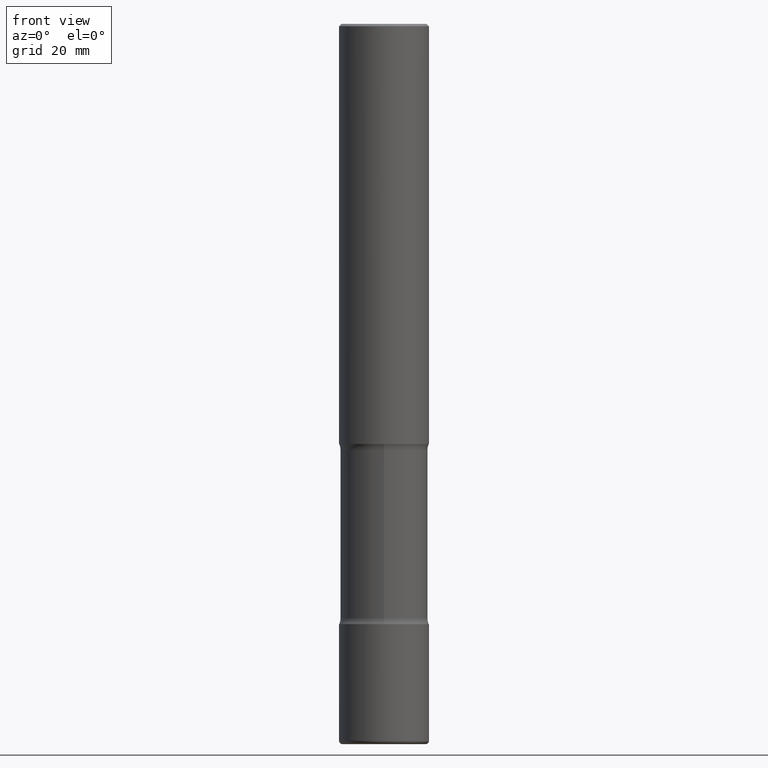
[diagram: clean part render]
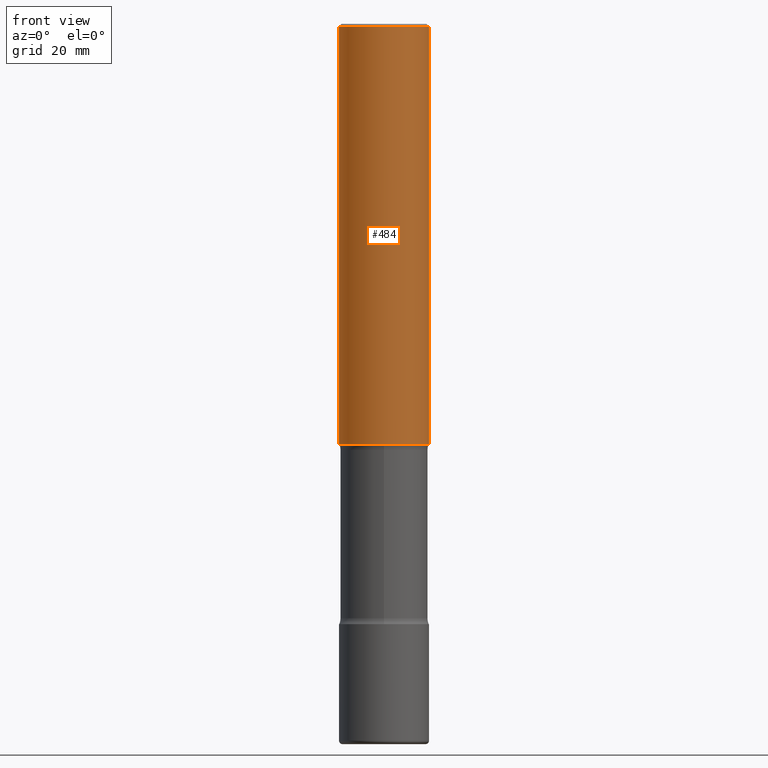
[diagram: same view with one face highlighted and labeled with its STEP entity id]
A machine part, front view. The second image highlights one B-rep face of the part: STEP entity #484.
In plain terms, the highlighted cylindrical surface (partial cylindrical patch) has radius 9.525 mm, axis along (-0, 0, 1).
Its self-contained STEP definition (entity closure, byte-faithful):
#3 = CARTESIAN_POINT ( 'NONE',  ( 4.890937612370273159E-31, -6.982962677686291609E-17, -0.02000000000000000042 ) ) ;
#6 = CARTESIAN_POINT ( 'NONE',  ( 0.3750000000000007772, -2.642516375941192367E-15, -0.02000000000000000042 ) ) ;
#40 = VECTOR ( 'NONE', #505, 39.37007874015748143 ) ;
#41 = CARTESIAN_POINT ( 'NONE',  ( -0.3750000000000009437, -3.480471897263552734E-15, -3.500000000000000444 ) ) ;
#71 = VERTEX_POINT ( 'NONE', #6 ) ;
#72 = AXIS2_PLACEMENT_3D ( 'NONE', #3, #466, #220 ) ;
#83 = EDGE_CURVE ( 'NONE', #460, #71, #400, .T. ) ;
#91 = EDGE_CURVE ( 'NONE', #125, #338, #488, .T. ) ;
#101 = CYLINDRICAL_SURFACE ( 'NONE', #550, 0.3750000000000008327 ) ;
#125 = VERTEX_POINT ( 'NONE', #41 ) ;
#148 = CARTESIAN_POINT ( 'NONE',  ( -0.3750000000000007772, 2.548781377355492635E-15, -0.02000000000000000042 ) ) ;
#184 = DIRECTION ( 'NONE',  ( -2.445468806185136877E-29, 3.491481338843145188E-15, 1.000000000000000000 ) ) ;
#207 = CARTESIAN_POINT ( 'NONE',  ( -0.3750000000000008327, 2.664535259100381613E-15, -1.844600658845593802E-29 ) ) ;
#214 = ORIENTED_EDGE ( 'NONE', *, *, #83, .F. ) ;
#220 = DIRECTION ( 'NONE',  ( 1.000000000000000000, -6.982962677686266711E-15, 0.000000000000000000 ) ) ;
#228 = CARTESIAN_POINT ( 'NONE',  ( 0.3750000000000008327, -2.618611004132355933E-15, 1.828566290923479846E-29 ) ) ;
#251 = EDGE_LOOP ( 'NONE', ( #512, #361, #271, #214 ) ) ;
#271 = ORIENTED_EDGE ( 'NONE', *, *, #276, .T. ) ;
#276 = EDGE_CURVE ( 'NONE', #338, #71, #526, .T. ) ;
#330 = DIRECTION ( 'NONE',  ( -2.445468806185136597E-29, 3.491481338843145583E-15, 1.000000000000000000 ) ) ;
#338 = VERTEX_POINT ( 'NONE', #354 ) ;
#347 = DIRECTION ( 'NONE',  ( 1.000000000000000000, -6.982962677686265922E-15, 0.000000000000000000 ) ) ;
#354 = CARTESIAN_POINT ( 'NONE',  ( 0.3750000000000009437, -1.483879569008336725E-14, -3.500000000000000444 ) ) ;
#361 = ORIENTED_EDGE ( 'NONE', *, *, #91, .T. ) ;
#371 = FACE_OUTER_BOUND ( 'NONE', #251, .T. ) ;
#388 = EDGE_CURVE ( 'NONE', #125, #460, #547, .T. ) ;
#390 = DIRECTION ( 'NONE',  ( -2.445468806185136597E-29, 3.491481338843145583E-15, 1.000000000000000000 ) ) ;
#391 = VECTOR ( 'NONE', #184, 39.37007874015748143 ) ;
#400 = CIRCLE ( 'NONE', #72, 0.3750000000000007772 ) ;
#408 = DIRECTION ( 'NONE',  ( 1.000000000000000000, -6.982962677686266711E-15, 4.876176775795935232E-29 ) ) ;
#444 = CARTESIAN_POINT ( 'NONE',  ( 0.000000000000000000, 0.000000000000000000, 0.000000000000000000 ) ) ;
#460 = VERTEX_POINT ( 'NONE', #148 ) ;
#466 = DIRECTION ( 'NONE',  ( -2.445468806185136597E-29, 3.491481338843145583E-15, 1.000000000000000000 ) ) ;
#484 = ADVANCED_FACE ( 'NONE', ( #371 ), #101, .T. ) ;
#488 = CIRCLE ( 'NONE', #518, 0.3750000000000009437 ) ;
#505 = DIRECTION ( 'NONE',  ( -2.445468806185136877E-29, 3.491481338843145188E-15, 1.000000000000000000 ) ) ;
#512 = ORIENTED_EDGE ( 'NONE', *, *, #388, .F. ) ;
#518 = AXIS2_PLACEMENT_3D ( 'NONE', #558, #390, #347 ) ;
#526 = LINE ( 'NONE', #228, #391 ) ;
#547 = LINE ( 'NONE', #207, #40 ) ;
#550 = AXIS2_PLACEMENT_3D ( 'NONE', #444, #330, #408 ) ;
#558 = CARTESIAN_POINT ( 'NONE',  ( 8.559140821647978089E-29, -1.222018468595101092E-14, -3.500000000000000444 ) ) ;